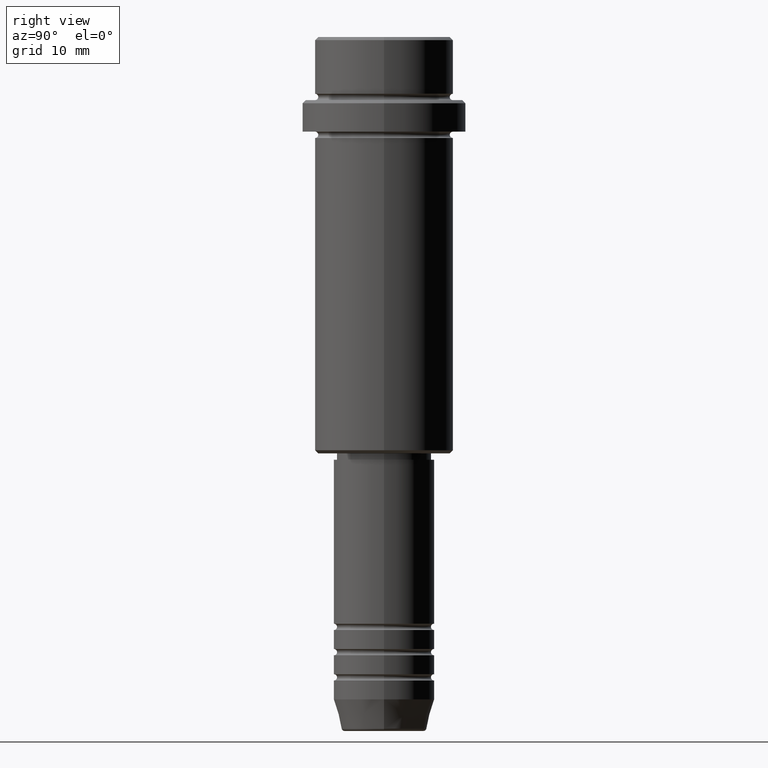
[diagram: clean part render]
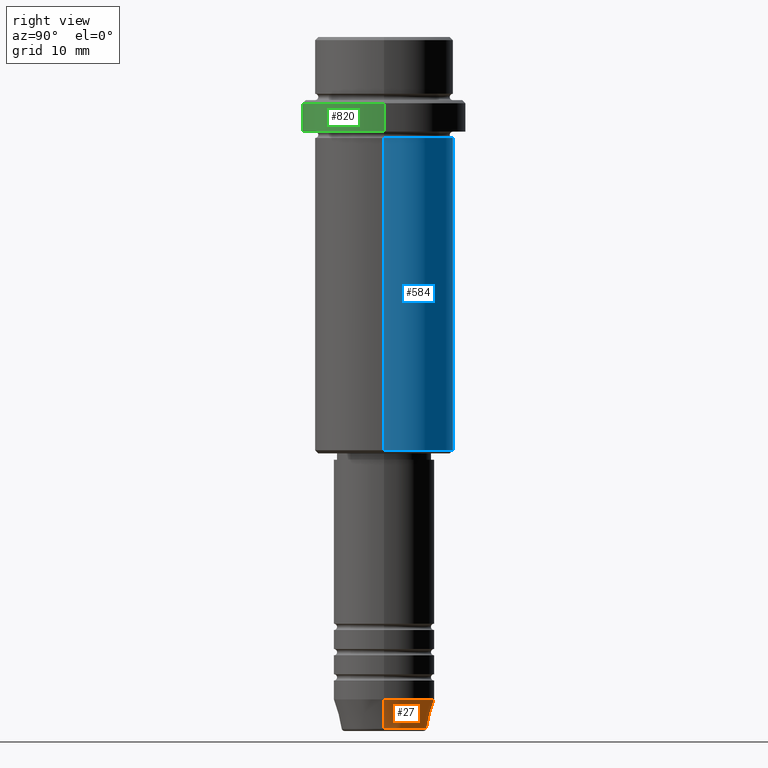
[diagram: same view with three faces highlighted in distinct colors, each labeled with its STEP entity id]
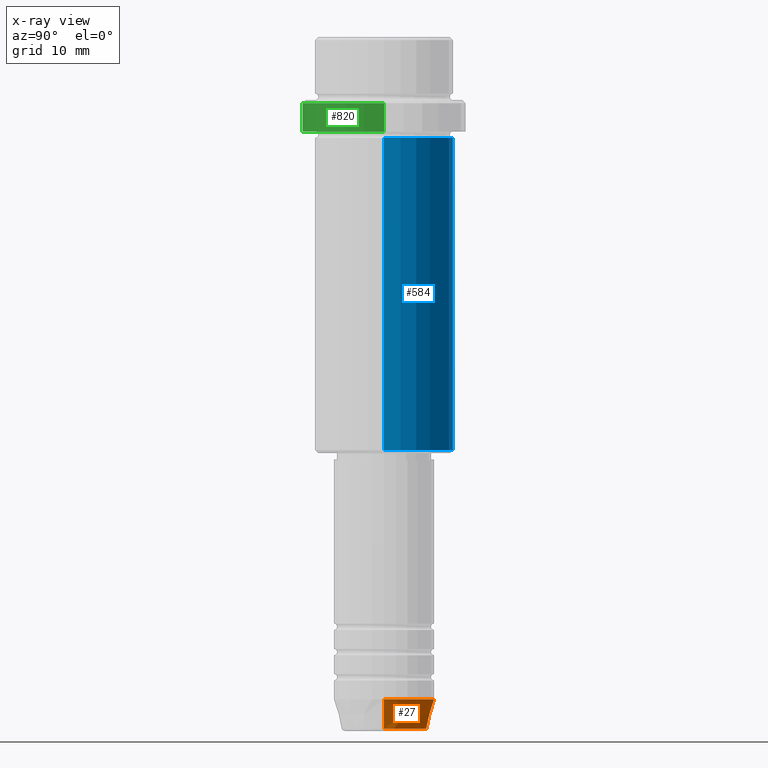
[diagram: x-ray of the same camera — body ghosted, the three highlighted faces saturated]
A machine part, right view with three faces highlighted in distinct colors.
The next image is the same camera in x-ray (body ghosted, the three faces saturated) — at least one of them is partly hidden behind the body in this view.
Their STEP definitions:

[orange] entity #27 — the highlighted conical surface has half-angle 15 deg.
#14 = CARTESIAN_POINT ( 'NONE',  ( 8.000000000000000000, 0.000000000000000000, -105.0000000000000142 ) ) ;
#27 = ADVANCED_FACE ( 'NONE', ( #381 ), #1413, .T. ) ;
#89 = EDGE_CURVE ( 'NONE', #248, #1394, #218, .T. ) ;
#101 = EDGE_LOOP ( 'NONE', ( #680, #1306, #1389, #1101 ) ) ;
#107 = VECTOR ( 'NONE', #1205, 1000.000000000000000 ) ;
#218 = LINE ( 'NONE', #333, #1358 ) ;
#230 = DIRECTION ( 'NONE',  ( 1.000000000000000000, 0.000000000000000000, 0.000000000000000000 ) ) ;
#248 = VERTEX_POINT ( 'NONE', #1221 ) ;
#302 = DIRECTION ( 'NONE',  ( 1.000000000000000000, 0.000000000000000000, 0.000000000000000000 ) ) ;
#333 = CARTESIAN_POINT ( 'NONE',  ( -8.000000000000000000, 9.797174393178825657E-16, -105.0000000000000142 ) ) ;
#334 = CARTESIAN_POINT ( 'NONE',  ( 0.000000000000000000, 0.000000000000000000, -105.0000000000000142 ) ) ;
#381 = FACE_OUTER_BOUND ( 'NONE', #101, .T. ) ;
#420 = CARTESIAN_POINT ( 'NONE',  ( 8.000000000000000000, 0.000000000000000000, -105.0000000000000142 ) ) ;
#430 = CARTESIAN_POINT ( 'NONE',  ( -8.000000000000000000, 9.797174393178825657E-16, -105.0000000000000142 ) ) ;
#489 = DIRECTION ( 'NONE',  ( -0.000000000000000000, -0.000000000000000000, 1.000000000000000000 ) ) ;
#494 = EDGE_CURVE ( 'NONE', #960, #508, #768, .T. ) ;
#508 = VERTEX_POINT ( 'NONE', #14 ) ;
#633 = DIRECTION ( 'NONE',  ( -0.2588190451025213501, 3.169619151431772337E-17, 0.9659258262890680902 ) ) ;
#654 = AXIS2_PLACEMENT_3D ( 'NONE', #827, #1259, #302 ) ;
#680 = ORIENTED_EDGE ( 'NONE', *, *, #1230, .T. ) ;
#691 = CARTESIAN_POINT ( 'NONE',  ( 6.759553456999433330, 0.000000000000000000, -109.6294095225512706 ) ) ;
#768 = LINE ( 'NONE', #420, #107 ) ;
#790 = AXIS2_PLACEMENT_3D ( 'NONE', #834, #489, #1373 ) ;
#811 = AXIS2_PLACEMENT_3D ( 'NONE', #334, #1203, #230 ) ;
#827 = CARTESIAN_POINT ( 'NONE',  ( 0.000000000000000000, 0.000000000000000000, -109.6294095225512706 ) ) ;
#834 = CARTESIAN_POINT ( 'NONE',  ( 0.000000000000000000, 0.000000000000000000, -105.0000000000000142 ) ) ;
#883 = EDGE_CURVE ( 'NONE', #508, #1394, #1166, .T. ) ;
#960 = VERTEX_POINT ( 'NONE', #691 ) ;
#1083 = CIRCLE ( 'NONE', #654, 6.759553456999433330 ) ;
#1101 = ORIENTED_EDGE ( 'NONE', *, *, #494, .F. ) ;
#1166 = CIRCLE ( 'NONE', #811, 8.000000000000000000 ) ;
#1203 = DIRECTION ( 'NONE',  ( -0.000000000000000000, -0.000000000000000000, 1.000000000000000000 ) ) ;
#1205 = DIRECTION ( 'NONE',  ( 0.2588190451025213501, 0.000000000000000000, 0.9659258262890680902 ) ) ;
#1221 = CARTESIAN_POINT ( 'NONE',  ( -6.759553456999433330, 9.037619948979304241E-16, -109.6294095225512706 ) ) ;
#1230 = EDGE_CURVE ( 'NONE', #960, #248, #1083, .T. ) ;
#1259 = DIRECTION ( 'NONE',  ( -0.000000000000000000, -0.000000000000000000, 1.000000000000000000 ) ) ;
#1306 = ORIENTED_EDGE ( 'NONE', *, *, #89, .T. ) ;
#1358 = VECTOR ( 'NONE', #633, 1000.000000000000000 ) ;
#1373 = DIRECTION ( 'NONE',  ( 1.000000000000000000, 0.000000000000000000, 0.000000000000000000 ) ) ;
#1389 = ORIENTED_EDGE ( 'NONE', *, *, #883, .F. ) ;
#1394 = VERTEX_POINT ( 'NONE', #430 ) ;
#1413 = CONICAL_SURFACE ( 'NONE', #790, 8.000000000000000000, 0.2617993877991500740 ) ;

[blue] entity #584 — the highlighted cylindrical surface (partial cylindrical patch) has radius 11 mm, axis along (-0, -0, 1).
#23 = EDGE_CURVE ( 'NONE', #564, #1228, #967, .T. ) ;
#79 = CARTESIAN_POINT ( 'NONE',  ( 0.000000000000000000, 0.000000000000000000, -65.50000000000000000 ) ) ;
#100 = CARTESIAN_POINT ( 'NONE',  ( -10.99999999999998757, 1.347111479062086827E-15, -65.50000000000000000 ) ) ;
#161 = DIRECTION ( 'NONE',  ( 1.000000000000000000, 0.000000000000000000, 0.000000000000000000 ) ) ;
#171 = AXIS2_PLACEMENT_3D ( 'NONE', #545, #1405, #1181 ) ;
#215 = ORIENTED_EDGE ( 'NONE', *, *, #659, .T. ) ;
#257 = CYLINDRICAL_SURFACE ( 'NONE', #909, 10.99999999999998757 ) ;
#282 = ORIENTED_EDGE ( 'NONE', *, *, #825, .F. ) ;
#308 = VECTOR ( 'NONE', #794, 1000.000000000000000 ) ;
#324 = ORIENTED_EDGE ( 'NONE', *, *, #631, .F. ) ;
#347 = LINE ( 'NONE', #358, #308 ) ;
#350 = DIRECTION ( 'NONE',  ( -0.000000000000000000, -0.000000000000000000, 1.000000000000000000 ) ) ;
#358 = CARTESIAN_POINT ( 'NONE',  ( -10.99999999999998757, 1.347111479062086827E-15, 0.000000000000000000 ) ) ;
#448 = VERTEX_POINT ( 'NONE', #849 ) ;
#474 = DIRECTION ( 'NONE',  ( -0.000000000000000000, -0.000000000000000000, 1.000000000000000000 ) ) ;
#545 = CARTESIAN_POINT ( 'NONE',  ( 0.000000000000000000, 0.000000000000000000, -16.00000000000000355 ) ) ;
#564 = VERTEX_POINT ( 'NONE', #847 ) ;
#574 = CARTESIAN_POINT ( 'NONE',  ( -10.99999999999997158, 1.347111479062085841E-15, -16.00000000000000355 ) ) ;
#584 = ADVANCED_FACE ( 'NONE', ( #1130 ), #257, .T. ) ;
#593 = EDGE_LOOP ( 'NONE', ( #708, #215, #282, #324 ) ) ;
#631 = EDGE_CURVE ( 'NONE', #564, #448, #889, .T. ) ;
#659 = EDGE_CURVE ( 'NONE', #1228, #1135, #347, .T. ) ;
#708 = ORIENTED_EDGE ( 'NONE', *, *, #23, .T. ) ;
#788 = CIRCLE ( 'NONE', #171, 10.99999999999997158 ) ;
#794 = DIRECTION ( 'NONE',  ( -0.000000000000000000, -0.000000000000000000, 1.000000000000000000 ) ) ;
#825 = EDGE_CURVE ( 'NONE', #448, #1135, #788, .T. ) ;
#847 = CARTESIAN_POINT ( 'NONE',  ( 10.99999999999998757, 0.000000000000000000, -65.50000000000000000 ) ) ;
#849 = CARTESIAN_POINT ( 'NONE',  ( 10.99999999999997158, 0.000000000000000000, -16.00000000000000355 ) ) ;
#889 = LINE ( 'NONE', #1017, #1241 ) ;
#909 = AXIS2_PLACEMENT_3D ( 'NONE', #1002, #350, #161 ) ;
#967 = CIRCLE ( 'NONE', #1198, 10.99999999999998757 ) ;
#1002 = CARTESIAN_POINT ( 'NONE',  ( 0.000000000000000000, 0.000000000000000000, 0.000000000000000000 ) ) ;
#1017 = CARTESIAN_POINT ( 'NONE',  ( 10.99999999999998757, 0.000000000000000000, 0.000000000000000000 ) ) ;
#1034 = DIRECTION ( 'NONE',  ( -1.000000000000000000, 0.000000000000000000, 0.000000000000000000 ) ) ;
#1130 = FACE_OUTER_BOUND ( 'NONE', #593, .T. ) ;
#1135 = VERTEX_POINT ( 'NONE', #574 ) ;
#1181 = DIRECTION ( 'NONE',  ( 1.000000000000000000, 0.000000000000000000, 0.000000000000000000 ) ) ;
#1198 = AXIS2_PLACEMENT_3D ( 'NONE', #79, #474, #1034 ) ;
#1216 = DIRECTION ( 'NONE',  ( -0.000000000000000000, -0.000000000000000000, 1.000000000000000000 ) ) ;
#1228 = VERTEX_POINT ( 'NONE', #100 ) ;
#1241 = VECTOR ( 'NONE', #1216, 1000.000000000000000 ) ;
#1405 = DIRECTION ( 'NONE',  ( -0.000000000000000000, -0.000000000000000000, 1.000000000000000000 ) ) ;

[green] entity #820 — the highlighted cylindrical surface (partial cylindrical patch) has radius 13 mm, axis along (-0, -0, 1).
#7 = FACE_OUTER_BOUND ( 'NONE', #39, .T. ) ;
#39 = EDGE_LOOP ( 'NONE', ( #815, #244, #1380, #255 ) ) ;
#84 = AXIS2_PLACEMENT_3D ( 'NONE', #533, #435, #752 ) ;
#121 = DIRECTION ( 'NONE',  ( -0.000000000000000000, -0.000000000000000000, 1.000000000000000000 ) ) ;
#140 = CARTESIAN_POINT ( 'NONE',  ( 13.00000000000000000, 0.000000000000000000, 0.000000000000000000 ) ) ;
#182 = DIRECTION ( 'NONE',  ( -0.000000000000000000, -0.000000000000000000, 1.000000000000000000 ) ) ;
#244 = ORIENTED_EDGE ( 'NONE', *, *, #1223, .T. ) ;
#255 = ORIENTED_EDGE ( 'NONE', *, *, #1300, .T. ) ;
#276 = EDGE_CURVE ( 'NONE', #1332, #923, #683, .T. ) ;
#316 = CIRCLE ( 'NONE', #84, 13.00000000000000000 ) ;
#429 = CARTESIAN_POINT ( 'NONE',  ( 0.000000000000000000, 0.000000000000000000, 0.000000000000000000 ) ) ;
#435 = DIRECTION ( 'NONE',  ( 0.000000000000000000, 0.000000000000000000, -1.000000000000000000 ) ) ;
#463 = CIRCLE ( 'NONE', #1383, 13.00000000000000000 ) ;
#513 = CYLINDRICAL_SURFACE ( 'NONE', #985, 13.00000000000000000 ) ;
#514 = CARTESIAN_POINT ( 'NONE',  ( 0.000000000000000000, 0.000000000000000000, -15.00000000000000178 ) ) ;
#533 = CARTESIAN_POINT ( 'NONE',  ( 0.000000000000000000, 0.000000000000000000, -10.50000000000000711 ) ) ;
#540 = DIRECTION ( 'NONE',  ( 1.000000000000000000, 0.000000000000000000, 0.000000000000000000 ) ) ;
#551 = VECTOR ( 'NONE', #799, 1000.000000000000000 ) ;
#582 = VERTEX_POINT ( 'NONE', #1234 ) ;
#643 = CARTESIAN_POINT ( 'NONE',  ( 13.00000000000000000, 0.000000000000000000, -15.00000000000000178 ) ) ;
#683 = LINE ( 'NONE', #140, #551 ) ;
#752 = DIRECTION ( 'NONE',  ( 1.000000000000000000, 0.000000000000000000, 0.000000000000000000 ) ) ;
#760 = EDGE_CURVE ( 'NONE', #582, #865, #1368, .T. ) ;
#799 = DIRECTION ( 'NONE',  ( -0.000000000000000000, -0.000000000000000000, 1.000000000000000000 ) ) ;
#815 = ORIENTED_EDGE ( 'NONE', *, *, #760, .F. ) ;
#820 = ADVANCED_FACE ( 'NONE', ( #7 ), #513, .T. ) ;
#865 = VERTEX_POINT ( 'NONE', #951 ) ;
#923 = VERTEX_POINT ( 'NONE', #1367 ) ;
#925 = DIRECTION ( 'NONE',  ( -0.000000000000000000, -0.000000000000000000, 1.000000000000000000 ) ) ;
#951 = CARTESIAN_POINT ( 'NONE',  ( -13.00000000000000000, 1.592040838891559095E-15, -10.50000000000000711 ) ) ;
#985 = AXIS2_PLACEMENT_3D ( 'NONE', #429, #121, #540 ) ;
#1003 = VECTOR ( 'NONE', #182, 1000.000000000000000 ) ;
#1139 = CARTESIAN_POINT ( 'NONE',  ( -13.00000000000000000, 1.592040838891559095E-15, 0.000000000000000000 ) ) ;
#1151 = DIRECTION ( 'NONE',  ( 1.000000000000000000, 0.000000000000000000, 0.000000000000000000 ) ) ;
#1223 = EDGE_CURVE ( 'NONE', #582, #1332, #463, .T. ) ;
#1234 = CARTESIAN_POINT ( 'NONE',  ( -13.00000000000000000, 1.592040838891559095E-15, -15.00000000000000178 ) ) ;
#1300 = EDGE_CURVE ( 'NONE', #923, #865, #316, .T. ) ;
#1332 = VERTEX_POINT ( 'NONE', #643 ) ;
#1367 = CARTESIAN_POINT ( 'NONE',  ( 13.00000000000000000, 0.000000000000000000, -10.50000000000000711 ) ) ;
#1368 = LINE ( 'NONE', #1139, #1003 ) ;
#1380 = ORIENTED_EDGE ( 'NONE', *, *, #276, .T. ) ;
#1383 = AXIS2_PLACEMENT_3D ( 'NONE', #514, #925, #1151 ) ;